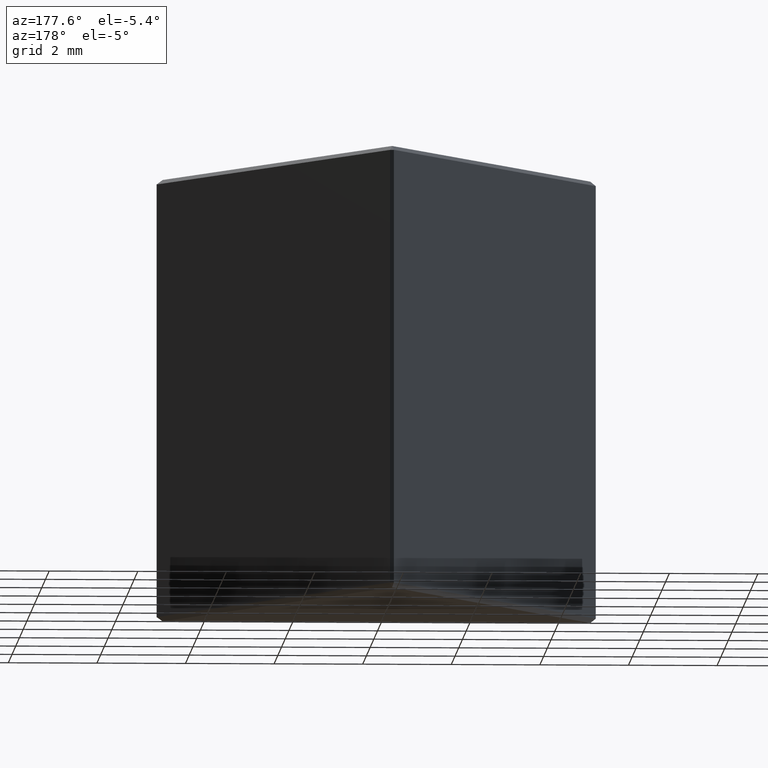
[diagram: clean part render]
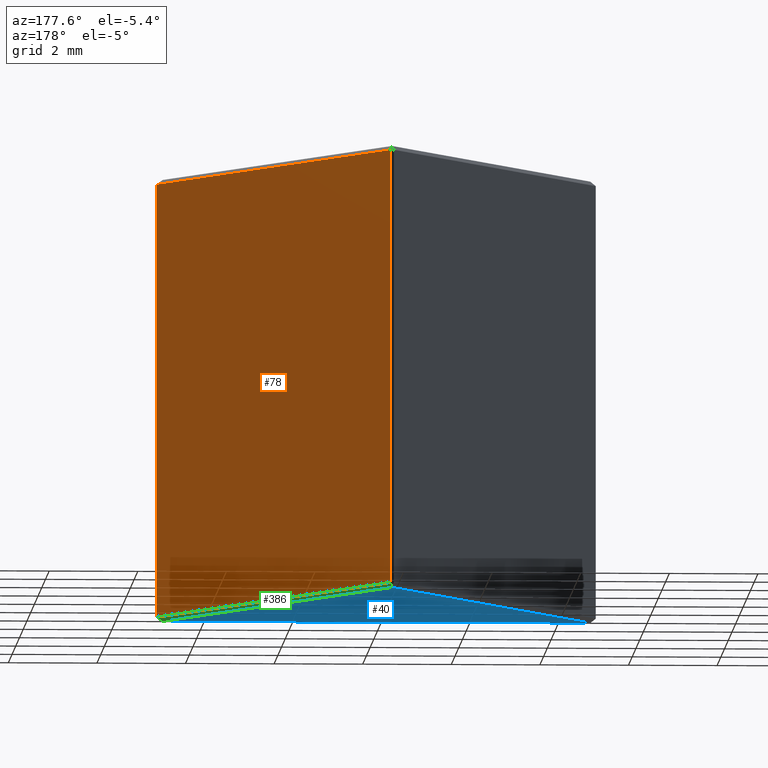
[diagram: same view with three faces highlighted in distinct colors, each labeled with its STEP entity id]
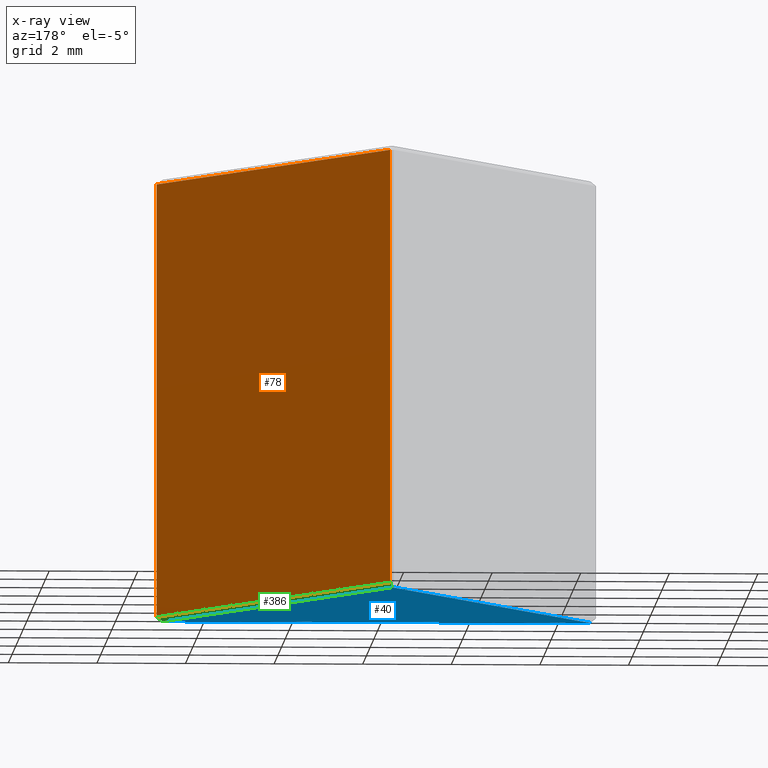
[diagram: x-ray of the same camera — body ghosted, the three highlighted faces saturated]
A machine part, auxiliary view with three faces highlighted in distinct colors.
The next image is the same camera in x-ray (body ghosted, the three faces saturated) — at least one of them is partly hidden behind the body in this view.
Their STEP definitions:

[orange] entity #78 — the highlighted planar face has unit normal (-0.866, -0.5, 0).
#13 = LINE ( 'NONE', #83, #335 ) ;
#36 = VECTOR ( 'NONE', #280, 999.9999999999998863 ) ;
#44 = CARTESIAN_POINT ( 'NONE',  ( 5.000000000000000000, -8.660254037844387298, 10.00000000000000000 ) ) ;
#53 = PLANE ( 'NONE',  #114 ) ;
#63 = CARTESIAN_POINT ( 'NONE',  ( 0.05000000000000062034, -0.08660254037844491992, 0.09999999999999903411 ) ) ;
#65 = ORIENTED_EDGE ( 'NONE', *, *, #356, .T. ) ;
#67 = VERTEX_POINT ( 'NONE', #204 ) ;
#76 = EDGE_CURVE ( 'NONE', #67, #188, #125, .T. ) ;
#78 = ADVANCED_FACE ( 'NONE', ( #237 ), #53, .F. ) ;
#83 = CARTESIAN_POINT ( 'NONE',  ( 0.05000000000000056483, -0.08660254037844497543, 10.00000000000000000 ) ) ;
#89 = EDGE_CURVE ( 'NONE', #457, #67, #248, .T. ) ;
#108 = EDGE_CURVE ( 'NONE', #305, #457, #321, .T. ) ;
#114 = AXIS2_PLACEMENT_3D ( 'NONE', #44, #162, #436 ) ;
#125 = LINE ( 'NONE', #273, #36 ) ;
#162 = DIRECTION ( 'NONE',  ( -0.8660254037844387076, -0.5000000000000001110, 0.000000000000000000 ) ) ;
#175 = DIRECTION ( 'NONE',  ( 0.000000000000000000, 0.000000000000000000, 1.000000000000000000 ) ) ;
#188 = VERTEX_POINT ( 'NONE', #63 ) ;
#196 = CARTESIAN_POINT ( 'NONE',  ( 4.963397459621555541, -8.596856578222828560, 10.00000000000000000 ) ) ;
#201 = DIRECTION ( 'NONE',  ( 0.5000000000000001110, -0.8660254037844387076, -0.000000000000000000 ) ) ;
#204 = CARTESIAN_POINT ( 'NONE',  ( 4.963397459621555541, -8.596856578222828560, 0.09999999999999903411 ) ) ;
#237 = FACE_OUTER_BOUND ( 'NONE', #313, .T. ) ;
#248 = LINE ( 'NONE', #196, #294 ) ;
#254 = ORIENTED_EDGE ( 'NONE', *, *, #76, .T. ) ;
#273 = CARTESIAN_POINT ( 'NONE',  ( 5.000000000000000000, -8.660254037844387298, 0.09999999999999939493 ) ) ;
#280 = DIRECTION ( 'NONE',  ( -0.5000000000000001110, 0.8660254037844387076, 0.000000000000000000 ) ) ;
#294 = VECTOR ( 'NONE', #355, 1000.000000000000000 ) ;
#305 = VERTEX_POINT ( 'NONE', #346 ) ;
#313 = EDGE_LOOP ( 'NONE', ( #65, #420, #409, #254 ) ) ;
#321 = LINE ( 'NONE', #501, #406 ) ;
#335 = VECTOR ( 'NONE', #175, 1000.000000000000000 ) ;
#346 = CARTESIAN_POINT ( 'NONE',  ( 0.05000000000000062728, -0.08660254037844491992, 9.899999999999998579 ) ) ;
#355 = DIRECTION ( 'NONE',  ( 0.000000000000000000, 0.000000000000000000, -1.000000000000000000 ) ) ;
#356 = EDGE_CURVE ( 'NONE', #188, #305, #13, .T. ) ;
#376 = CARTESIAN_POINT ( 'NONE',  ( 4.963397459621555541, -8.596856578222828560, 9.899999999999998579 ) ) ;
#406 = VECTOR ( 'NONE', #201, 999.9999999999998863 ) ;
#409 = ORIENTED_EDGE ( 'NONE', *, *, #89, .T. ) ;
#420 = ORIENTED_EDGE ( 'NONE', *, *, #108, .T. ) ;
#436 = DIRECTION ( 'NONE',  ( 0.5000000000000000000, -0.8660254037844385966, 0.000000000000000000 ) ) ;
#457 = VERTEX_POINT ( 'NONE', #376 ) ;
#501 = CARTESIAN_POINT ( 'NONE',  ( 5.000000000000000000, -8.660254037844387298, 9.899999999999998579 ) ) ;

[blue] entity #40 — the highlighted planar face has unit normal (0, 0, 1).
#1 = PLANE ( 'NONE',  #443 ) ;
#27 = CARTESIAN_POINT ( 'NONE',  ( 0.08660254037844479502, -0.05000000000000055095, 0.000000000000000000 ) ) ;
#40 = ADVANCED_FACE ( 'NONE', ( #87 ), #1, .F. ) ;
#54 = CARTESIAN_POINT ( 'NONE',  ( 0.000000000000000000, 0.000000000000000000, 0.000000000000000000 ) ) ;
#74 = EDGE_LOOP ( 'NONE', ( #345, #215, #388 ) ) ;
#87 = FACE_OUTER_BOUND ( 'NONE', #74, .T. ) ;
#92 = DIRECTION ( 'NONE',  ( 1.000000000000000000, 0.000000000000000000, -0.000000000000000000 ) ) ;
#100 = VERTEX_POINT ( 'NONE', #362 ) ;
#131 = DIRECTION ( 'NONE',  ( 0.000000000000000000, 0.000000000000000000, 1.000000000000000000 ) ) ;
#133 = CARTESIAN_POINT ( 'NONE',  ( 4.826794919243109661, -8.560254037844385877, 0.000000000000000000 ) ) ;
#134 = DIRECTION ( 'NONE',  ( 0.5000000000000001110, 0.8660254037844385966, 0.000000000000000000 ) ) ;
#156 = VECTOR ( 'NONE', #433, 1000.000000000000000 ) ;
#157 = VERTEX_POINT ( 'NONE', #432 ) ;
#160 = EDGE_CURVE ( 'NONE', #157, #100, #224, .T. ) ;
#174 = VECTOR ( 'NONE', #134, 1000.000000000000114 ) ;
#215 = ORIENTED_EDGE ( 'NONE', *, *, #424, .T. ) ;
#224 = LINE ( 'NONE', #27, #174 ) ;
#249 = EDGE_CURVE ( 'NONE', #100, #340, #250, .T. ) ;
#250 = LINE ( 'NONE', #328, #286 ) ;
#286 = VECTOR ( 'NONE', #417, 1000.000000000000114 ) ;
#328 = CARTESIAN_POINT ( 'NONE',  ( -0.08660254037844636321, -0.05000000000000144607, 0.000000000000000000 ) ) ;
#331 = LINE ( 'NONE', #467, #156 ) ;
#340 = VERTEX_POINT ( 'NONE', #133 ) ;
#345 = ORIENTED_EDGE ( 'NONE', *, *, #249, .T. ) ;
#362 = CARTESIAN_POINT ( 'NONE',  ( -1.083700895443211318E-15, -0.2000000000000040357, 0.000000000000000000 ) ) ;
#388 = ORIENTED_EDGE ( 'NONE', *, *, #160, .T. ) ;
#417 = DIRECTION ( 'NONE',  ( 0.5000000000000001110, -0.8660254037844385966, 0.000000000000000000 ) ) ;
#424 = EDGE_CURVE ( 'NONE', #340, #157, #331, .T. ) ;
#432 = CARTESIAN_POINT ( 'NONE',  ( -4.826794919243110549, -8.560254037844385877, 0.000000000000000000 ) ) ;
#433 = DIRECTION ( 'NONE',  ( -1.000000000000000000, 0.000000000000000000, 0.000000000000000000 ) ) ;
#443 = AXIS2_PLACEMENT_3D ( 'NONE', #54, #131, #92 ) ;
#467 = CARTESIAN_POINT ( 'NONE',  ( 0.000000000000000000, -8.560254037844385877, 0.000000000000000000 ) ) ;

[green] entity #386 — the highlighted planar face has unit normal (-0.6124, -0.3536, 0.7071).
#5 = CARTESIAN_POINT ( 'NONE',  ( 5.000000000000000000, -8.660254037844387298, 0.09999999999999939493 ) ) ;
#18 = LINE ( 'NONE', #332, #407 ) ;
#36 = VECTOR ( 'NONE', #280, 999.9999999999998863 ) ;
#46 = DIRECTION ( 'NONE',  ( -0.6123724356957840342, -0.3535533905932677357, 0.7071067811865597852 ) ) ;
#50 = PLANE ( 'NONE',  #243 ) ;
#63 = CARTESIAN_POINT ( 'NONE',  ( 0.05000000000000062034, -0.08660254037844491992, 0.09999999999999903411 ) ) ;
#67 = VERTEX_POINT ( 'NONE', #204 ) ;
#76 = EDGE_CURVE ( 'NONE', #67, #188, #125, .T. ) ;
#79 = ORIENTED_EDGE ( 'NONE', *, *, #249, .F. ) ;
#100 = VERTEX_POINT ( 'NONE', #362 ) ;
#125 = LINE ( 'NONE', #273, #36 ) ;
#126 = DIRECTION ( 'NONE',  ( -0.5000000000000000000, 0.8660254037844385966, 0.000000000000000000 ) ) ;
#133 = CARTESIAN_POINT ( 'NONE',  ( 4.826794919243109661, -8.560254037844385877, 0.000000000000000000 ) ) ;
#140 = ORIENTED_EDGE ( 'NONE', *, *, #260, .F. ) ;
#154 = EDGE_LOOP ( 'NONE', ( #225, #79, #140, #316 ) ) ;
#170 = LINE ( 'NONE', #283, #312 ) ;
#188 = VERTEX_POINT ( 'NONE', #63 ) ;
#204 = CARTESIAN_POINT ( 'NONE',  ( 4.963397459621555541, -8.596856578222828560, 0.09999999999999903411 ) ) ;
#225 = ORIENTED_EDGE ( 'NONE', *, *, #439, .T. ) ;
#243 = AXIS2_PLACEMENT_3D ( 'NONE', #5, #46, #126 ) ;
#249 = EDGE_CURVE ( 'NONE', #100, #340, #250, .T. ) ;
#250 = LINE ( 'NONE', #328, #286 ) ;
#260 = EDGE_CURVE ( 'NONE', #188, #100, #18, .T. ) ;
#273 = CARTESIAN_POINT ( 'NONE',  ( 5.000000000000000000, -8.660254037844387298, 0.09999999999999939493 ) ) ;
#280 = DIRECTION ( 'NONE',  ( -0.5000000000000001110, 0.8660254037844387076, 0.000000000000000000 ) ) ;
#281 = FACE_OUTER_BOUND ( 'NONE', #154, .T. ) ;
#283 = CARTESIAN_POINT ( 'NONE',  ( 4.963397459621555541, -8.596856578222828560, 0.09999999999999903411 ) ) ;
#286 = VECTOR ( 'NONE', #417, 1000.000000000000114 ) ;
#312 = VECTOR ( 'NONE', #482, 1000.000000000000227 ) ;
#316 = ORIENTED_EDGE ( 'NONE', *, *, #76, .F. ) ;
#328 = CARTESIAN_POINT ( 'NONE',  ( -0.08660254037844636321, -0.05000000000000144607, 0.000000000000000000 ) ) ;
#332 = CARTESIAN_POINT ( 'NONE',  ( 0.04665063509461123831, -0.09419872981077902219, 0.09330127018922121374 ) ) ;
#340 = VERTEX_POINT ( 'NONE', #133 ) ;
#362 = CARTESIAN_POINT ( 'NONE',  ( -1.083700895443211318E-15, -0.2000000000000040357, 0.000000000000000000 ) ) ;
#386 = ADVANCED_FACE ( 'NONE', ( #281 ), #50, .F. ) ;
#402 = DIRECTION ( 'NONE',  ( -0.3139815150997799509, -0.7120941236088510484, -0.6279630301995405839 ) ) ;
#407 = VECTOR ( 'NONE', #402, 1000.000000000000114 ) ;
#417 = DIRECTION ( 'NONE',  ( 0.5000000000000001110, -0.8660254037844385966, 0.000000000000000000 ) ) ;
#439 = EDGE_CURVE ( 'NONE', #67, #340, #170, .T. ) ;
#482 = DIRECTION ( 'NONE',  ( -0.7886751345948216363, 0.2113248654051831377, -0.5773502691896152950 ) ) ;